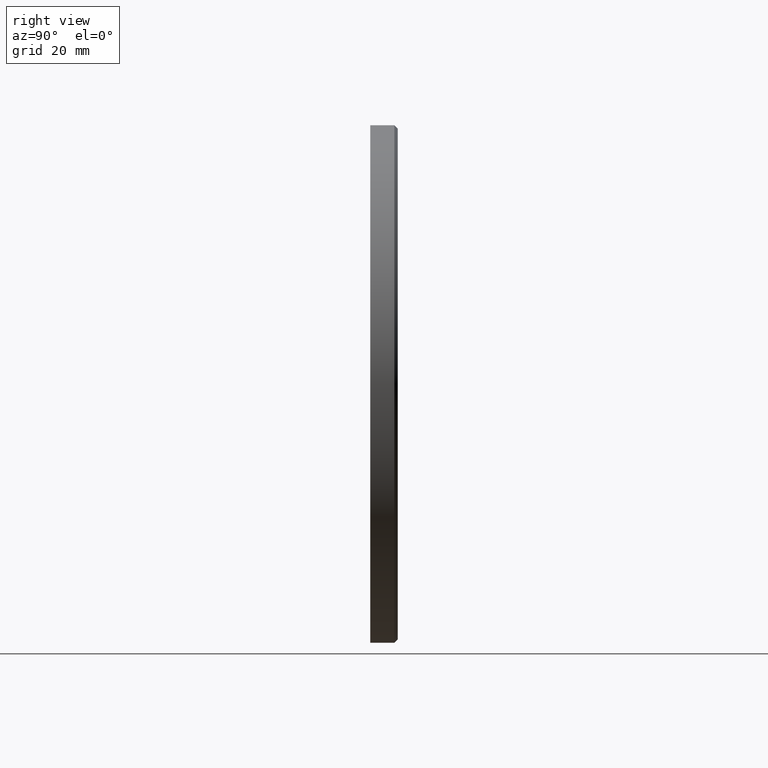
[diagram: clean part render]
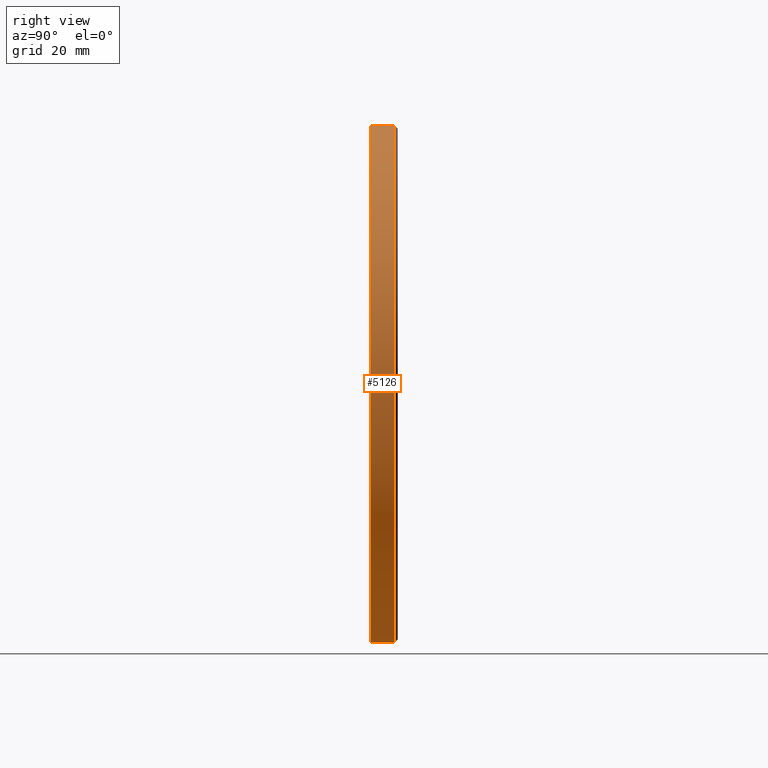
[diagram: same view with one face highlighted and labeled with its STEP entity id]
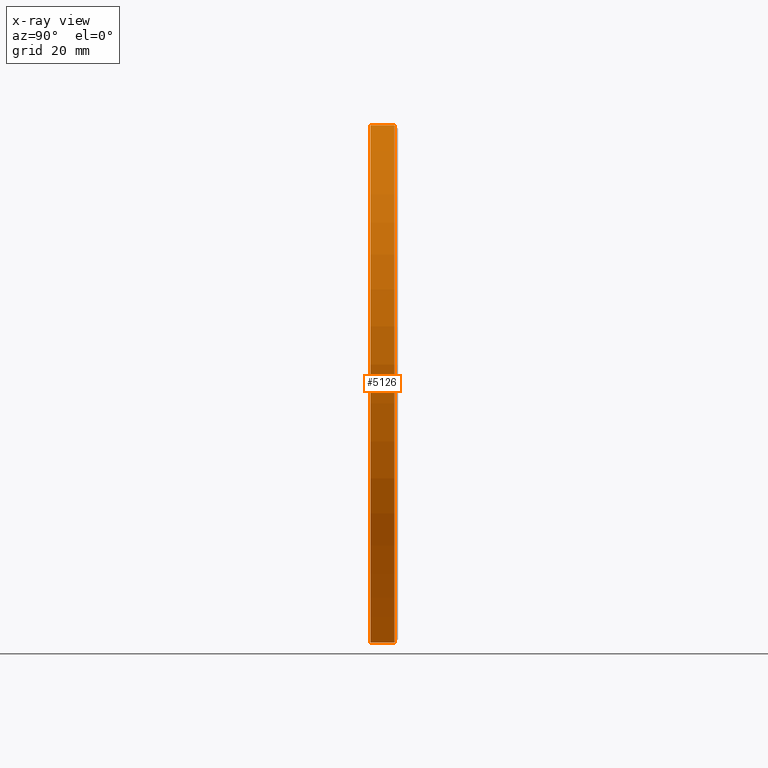
[diagram: x-ray of the same camera — body ghosted, the highlighted face saturated]
A machine part, right view. The second image highlights one B-rep face of the part: STEP entity #5126.
The next image is the same camera in x-ray: the body ghosted, the highlighted face saturated — about 0% of this face is hidden behind the body in this view.
In plain terms, the highlighted cylindrical surface (partial cylindrical patch) has radius 75 mm, axis along (-0, -1, -0).
Its self-contained STEP definition (entity closure, byte-faithful):
#10 = DIRECTION ( 'NONE',  ( 0.000000000000000000, 1.000000000000000000, 0.000000000000000000 ) ) ;
#723 = ORIENTED_EDGE ( 'NONE', *, *, #6750, .F. ) ;
#1163 = CIRCLE ( 'NONE', #13941, 75.00000000000001421 ) ;
#1256 = VECTOR ( 'NONE', #6687, 1000.000000000000000 ) ;
#1378 = CARTESIAN_POINT ( 'NONE',  ( 0.000000000000000000, 2.999999999999985345, -75.00000000000001421 ) ) ;
#1915 = DIRECTION ( 'NONE',  ( 0.000000000000000000, 0.000000000000000000, -1.000000000000000000 ) ) ;
#2254 = VERTEX_POINT ( 'NONE', #10477 ) ;
#2704 = EDGE_CURVE ( 'NONE', #14591, #2254, #6946, .T. ) ;
#3092 = DIRECTION ( 'NONE',  ( 0.000000000000000000, 0.000000000000000000, 1.000000000000000000 ) ) ;
#3756 = DIRECTION ( 'NONE',  ( -0.000000000000000000, -1.000000000000000000, -0.000000000000000000 ) ) ;
#3931 = LINE ( 'NONE', #7726, #1256 ) ;
#4279 = EDGE_CURVE ( 'NONE', #5072, #10565, #1163, .T. ) ;
#5072 = VERTEX_POINT ( 'NONE', #13058 ) ;
#5126 = ADVANCED_FACE ( 'NONE', ( #8457 ), #15010, .T. ) ;
#6169 = ORIENTED_EDGE ( 'NONE', *, *, #2704, .T. ) ;
#6687 = DIRECTION ( 'NONE',  ( -0.000000000000000000, -1.000000000000000000, -0.000000000000000000 ) ) ;
#6750 = EDGE_CURVE ( 'NONE', #14591, #10565, #10960, .T. ) ;
#6946 = CIRCLE ( 'NONE', #7124, 75.00000000000001421 ) ;
#7124 = AXIS2_PLACEMENT_3D ( 'NONE', #13120, #11890, #3092 ) ;
#7663 = VECTOR ( 'NONE', #3756, 1000.000000000000000 ) ;
#7726 = CARTESIAN_POINT ( 'NONE',  ( 9.184850993605150311E-15, 4.000000000000000000, 75.00000000000001421 ) ) ;
#8457 = FACE_OUTER_BOUND ( 'NONE', #8782, .T. ) ;
#8782 = EDGE_LOOP ( 'NONE', ( #6169, #13821, #9821, #723 ) ) ;
#9320 = DIRECTION ( 'NONE',  ( -0.000000000000000000, -1.000000000000000000, -0.000000000000000000 ) ) ;
#9629 = CARTESIAN_POINT ( 'NONE',  ( 0.000000000000000000, 4.000000000000000000, -75.00000000000001421 ) ) ;
#9821 = ORIENTED_EDGE ( 'NONE', *, *, #4279, .T. ) ;
#9973 = CARTESIAN_POINT ( 'NONE',  ( 0.000000000000000000, -4.000000000000000000, 0.000000000000000000 ) ) ;
#10477 = CARTESIAN_POINT ( 'NONE',  ( 9.184850993605150311E-15, 2.999999999999985345, 75.00000000000001421 ) ) ;
#10565 = VERTEX_POINT ( 'NONE', #11628 ) ;
#10646 = CARTESIAN_POINT ( 'NONE',  ( 0.000000000000000000, 4.000000000000000000, 0.000000000000000000 ) ) ;
#10957 = EDGE_CURVE ( 'NONE', #2254, #5072, #3931, .T. ) ;
#10960 = LINE ( 'NONE', #9629, #7663 ) ;
#11178 = DIRECTION ( 'NONE',  ( 0.000000000000000000, 0.000000000000000000, 1.000000000000000000 ) ) ;
#11473 = AXIS2_PLACEMENT_3D ( 'NONE', #10646, #9320, #1915 ) ;
#11628 = CARTESIAN_POINT ( 'NONE',  ( 0.000000000000000000, -4.000000000000000000, -75.00000000000001421 ) ) ;
#11890 = DIRECTION ( 'NONE',  ( 0.000000000000000000, -1.000000000000000000, 0.000000000000000000 ) ) ;
#13058 = CARTESIAN_POINT ( 'NONE',  ( 9.184850993605150311E-15, -4.000000000000000000, 75.00000000000001421 ) ) ;
#13120 = CARTESIAN_POINT ( 'NONE',  ( 0.000000000000000000, 2.999999999999985345, 0.000000000000000000 ) ) ;
#13821 = ORIENTED_EDGE ( 'NONE', *, *, #10957, .T. ) ;
#13941 = AXIS2_PLACEMENT_3D ( 'NONE', #9973, #10, #11178 ) ;
#14591 = VERTEX_POINT ( 'NONE', #1378 ) ;
#15010 = CYLINDRICAL_SURFACE ( 'NONE', #11473, 75.00000000000001421 ) ;